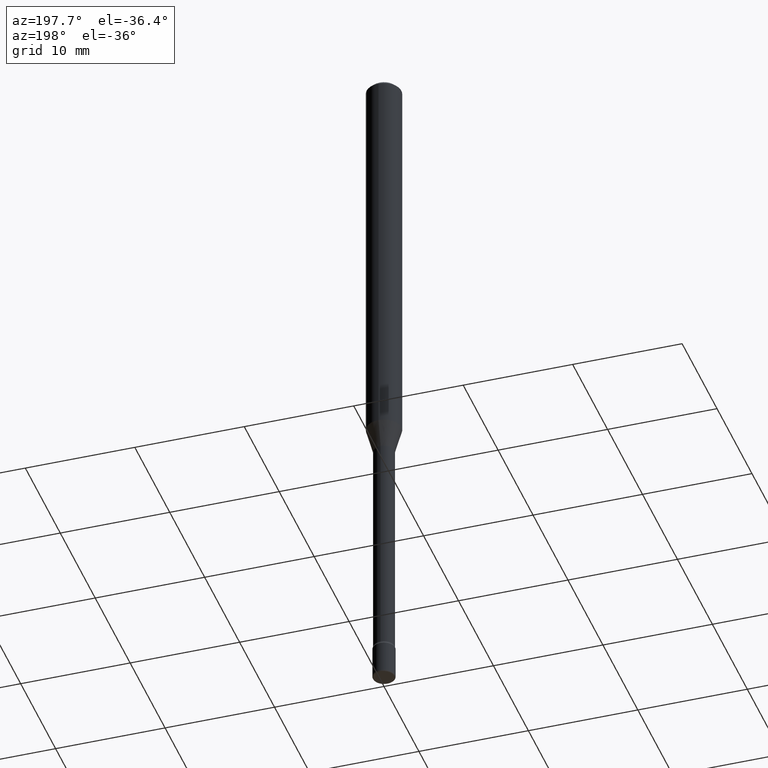
[diagram: clean part render]
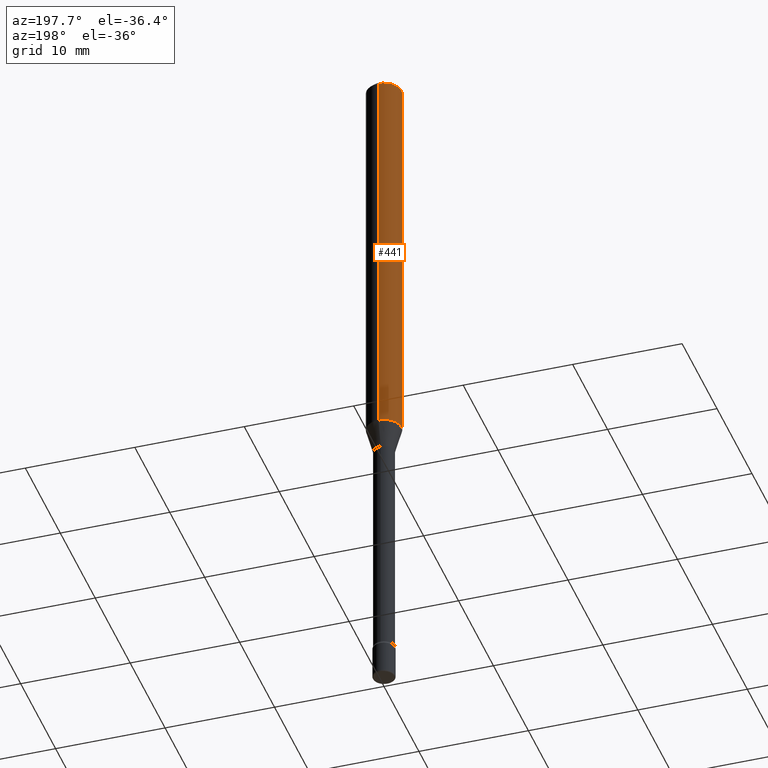
[diagram: same view with one face highlighted and labeled with its STEP entity id]
A machine part, auxiliary view. The second image highlights one B-rep face of the part: STEP entity #441.
In plain terms, the highlighted cylindrical surface (edge-blend (fillet) strip) has radius 1.5875 mm, axis along (-0, 0, 1).
Its self-contained STEP definition (entity closure, byte-faithful):
#12 = EDGE_CURVE ( 'NONE', #425, #402, #155, .T. ) ;
#43 = EDGE_CURVE ( 'NONE', #183, #494, #463, .T. ) ;
#62 = CARTESIAN_POINT ( 'NONE',  ( 3.667972644630171939E-31, -5.237552189962929655E-17, -0.01500000000000002720 ) ) ;
#66 = EDGE_LOOP ( 'NONE', ( #287, #326, #442, #224 ) ) ;
#73 = VECTOR ( 'NONE', #393, 39.37007874015748143 ) ;
#76 = CIRCLE ( 'NONE', #570, 0.06250000000000000000 ) ;
#79 = CARTESIAN_POINT ( 'NONE',  ( 4.440892098500625669E-16, 0.06250000000000000000, 2.598420576427910934E-16 ) ) ;
#119 = CIRCLE ( 'NONE', #419, 0.06250000000000000000 ) ;
#121 = EDGE_CURVE ( 'NONE', #183, #425, #119, .T. ) ;
#143 = DIRECTION ( 'NONE',  ( -6.982962677686265922E-15, -1.000000000000000000, 3.483106191921935554E-15 ) ) ;
#155 = LINE ( 'NONE', #557, #389 ) ;
#170 = CARTESIAN_POINT ( 'NONE',  ( -4.364351673553565651E-16, -0.06250000000000509315, -1.447071934891535072 ) ) ;
#183 = VERTEX_POINT ( 'NONE', #276 ) ;
#201 = CARTESIAN_POINT ( 'NONE',  ( 4.440892098500982135E-16, 0.06249999999999995143, -0.01500000000000024578 ) ) ;
#224 = ORIENTED_EDGE ( 'NONE', *, *, #298, .F. ) ;
#263 = CYLINDRICAL_SURFACE ( 'NONE', #340, 0.06250000000000000000 ) ;
#276 = CARTESIAN_POINT ( 'NONE',  ( 4.440892098500976219E-16, 0.06249999999999491379, -1.447071934891535516 ) ) ;
#287 = ORIENTED_EDGE ( 'NONE', *, *, #43, .F. ) ;
#298 = EDGE_CURVE ( 'NONE', #494, #402, #76, .T. ) ;
#326 = ORIENTED_EDGE ( 'NONE', *, *, #121, .T. ) ;
#336 = DIRECTION ( 'NONE',  ( -2.445315096420110410E-29, 3.491701459975279518E-15, 1.000000000000000000 ) ) ;
#340 = AXIS2_PLACEMENT_3D ( 'NONE', #569, #538, #568 ) ;
#389 = VECTOR ( 'NONE', #510, 39.37007874015748143 ) ;
#393 = DIRECTION ( 'NONE',  ( -2.445315096420110130E-29, 3.491701459975279518E-15, 1.000000000000000000 ) ) ;
#402 = VERTEX_POINT ( 'NONE', #434 ) ;
#404 = DIRECTION ( 'NONE',  ( -6.982962677686265922E-15, -1.000000000000000000, 4.370956789862821150E-15 ) ) ;
#419 = AXIS2_PLACEMENT_3D ( 'NONE', #552, #449, #404 ) ;
#425 = VERTEX_POINT ( 'NONE', #170 ) ;
#434 = CARTESIAN_POINT ( 'NONE',  ( -4.364351673553912750E-16, -0.06250000000000005551, -0.01499999999999981036 ) ) ;
#441 = ADVANCED_FACE ( 'NONE', ( #488 ), #263, .T. ) ;
#442 = ORIENTED_EDGE ( 'NONE', *, *, #12, .T. ) ;
#449 = DIRECTION ( 'NONE',  ( -2.445315096420110410E-29, 3.491701459975279518E-15, 1.000000000000000000 ) ) ;
#463 = LINE ( 'NONE', #79, #73 ) ;
#488 = FACE_OUTER_BOUND ( 'NONE', #66, .T. ) ;
#494 = VERTEX_POINT ( 'NONE', #201 ) ;
#510 = DIRECTION ( 'NONE',  ( -2.445315096420110130E-29, 3.491701459975279518E-15, 1.000000000000000000 ) ) ;
#538 = DIRECTION ( 'NONE',  ( -2.445315096420110410E-29, 3.491701459975279518E-15, 1.000000000000000000 ) ) ;
#552 = CARTESIAN_POINT ( 'NONE',  ( 3.538546847996129804E-29, -5.052743187750026266E-15, -1.447071934891535294 ) ) ;
#557 = CARTESIAN_POINT ( 'NONE',  ( -4.364351673553916201E-16, -0.06250000000000000000, 6.963047401397009838E-16 ) ) ;
#568 = DIRECTION ( 'NONE',  ( -6.982962677686265922E-15, -1.000000000000000000, 3.491701459975279518E-15 ) ) ;
#569 = CARTESIAN_POINT ( 'NONE',  ( -1.169113584055446105E-44, 1.669184350826100908E-30, 4.780733988912460139E-16 ) ) ;
#570 = AXIS2_PLACEMENT_3D ( 'NONE', #62, #336, #143 ) ;